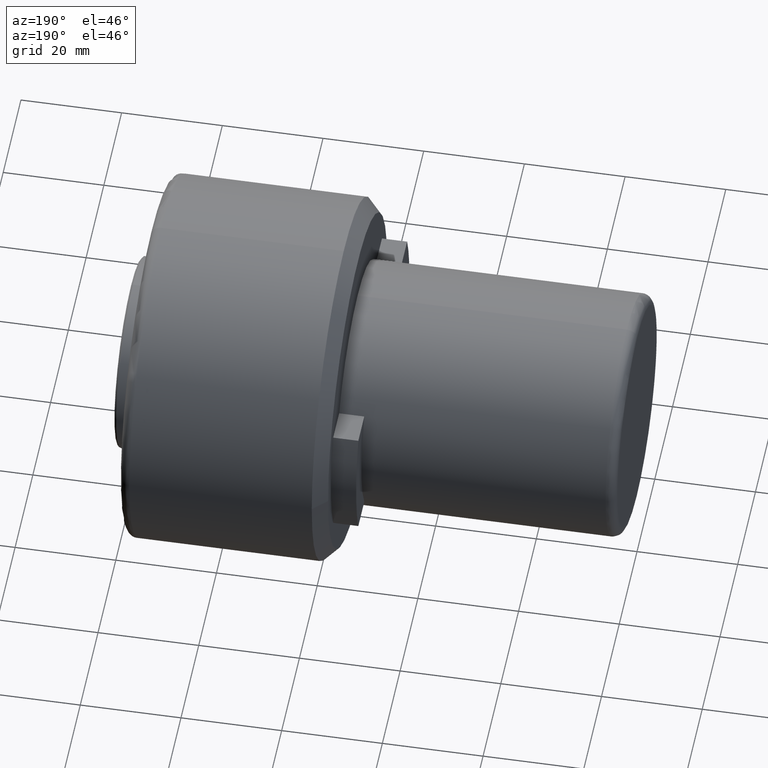
[diagram: clean part render]
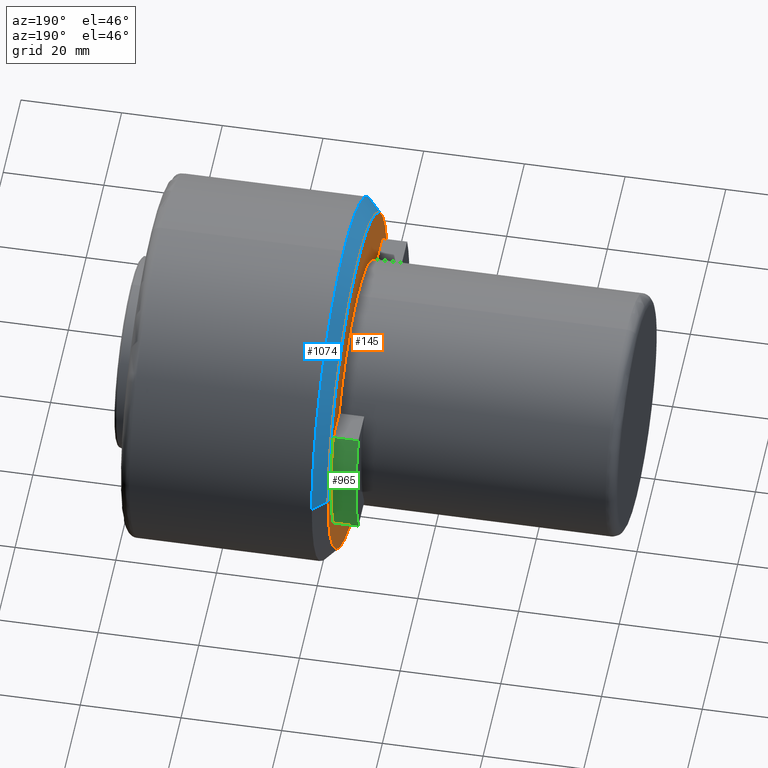
[diagram: same view with three faces highlighted in distinct colors, each labeled with its STEP entity id]
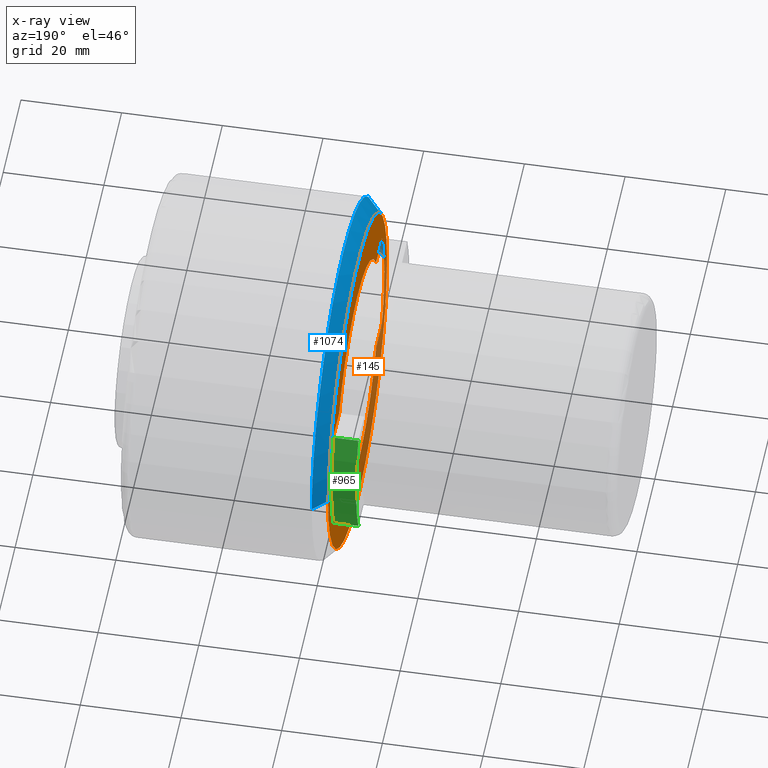
[diagram: x-ray of the same camera — body ghosted, the three highlighted faces saturated]
A machine part, auxiliary view with three faces highlighted in distinct colors.
The next image is the same camera in x-ray (body ghosted, the three faces saturated) — at least one of them is partly hidden behind the body in this view.
Their STEP definitions:

[orange] entity #145 — the highlighted planar face has unit normal (1, 0, 0).
#3 = CARTESIAN_POINT ( 'NONE',  ( 55.50000000000000000, -33.64900000000000100, -11.99999999140761600 ) ) ;
#6 = ORIENTED_EDGE ( 'NONE', *, *, #966, .F. ) ;
#12 = AXIS2_PLACEMENT_3D ( 'NONE', #931, #1026, #706 ) ;
#43 = CARTESIAN_POINT ( 'NONE',  ( 55.49999999999999300, 27.49545417165220900, -11.99999999787949900 ) ) ;
#63 = EDGE_CURVE ( 'NONE', #368, #646, #776, .T. ) ;
#77 = CARTESIAN_POINT ( 'NONE',  ( 55.50000000000000000, 20.78460969240347500, -11.99999999726865100 ) ) ;
#90 = EDGE_CURVE ( 'NONE', #511, #403, #995, .T. ) ;
#99 = AXIS2_PLACEMENT_3D ( 'NONE', #639, #1366, #400 ) ;
#131 = CARTESIAN_POINT ( 'NONE',  ( 55.50000000000000700, -20.78460969578734200, -11.99999999140761600 ) ) ;
#134 = CARTESIAN_POINT ( 'NONE',  ( 55.49999999999999300, -2.650271977186816100E-016, 0.0000000000000000000 ) ) ;
#141 = CARTESIAN_POINT ( 'NONE',  ( 55.50000000000000700, 0.0000000000000000000, 5.015442563508426400E-031 ) ) ;
#145 = ADVANCED_FACE ( 'NONE', ( #943, #391 ), #905, .F. ) ;
#146 = DIRECTION ( 'NONE',  ( 0.0000000000000000000, 0.0000000000000000000, 1.000000000000000000 ) ) ;
#149 = CARTESIAN_POINT ( 'NONE',  ( 55.49999999999999300, -33.24999999999999300, 4.240339542047711600E-015 ) ) ;
#160 = VECTOR ( 'NONE', #1171, 1000.000000000000000 ) ;
#168 = LINE ( 'NONE', #1274, #382 ) ;
#187 = ORIENTED_EDGE ( 'NONE', *, *, #929, .F. ) ;
#195 = EDGE_CURVE ( 'NONE', #1389, #663, #1014, .T. ) ;
#203 = CARTESIAN_POINT ( 'NONE',  ( 55.49999999999999300, 33.24999999999999300, 0.0000000000000000000 ) ) ;
#209 = CARTESIAN_POINT ( 'NONE',  ( 55.50000000000000700, 2.939152317953647900E-015, -24.00000000000000000 ) ) ;
#216 = DIRECTION ( 'NONE',  ( 0.0000000000000000000, 1.000000000000000000, 0.0000000000000000000 ) ) ;
#224 = CARTESIAN_POINT ( 'NONE',  ( 55.50000000000000000, -33.64900000000000100, 11.99999999999999600 ) ) ;
#233 = CARTESIAN_POINT ( 'NONE',  ( 55.50000000000000000, 3.677383230559753400E-031, 0.0000000000000000000 ) ) ;
#239 = DIRECTION ( 'NONE',  ( 0.0000000000000000000, 1.000000000000000000, 0.0000000000000000000 ) ) ;
#252 = VERTEX_POINT ( 'NONE', #209 ) ;
#283 = AXIS2_PLACEMENT_3D ( 'NONE', #134, #894, #239 ) ;
#347 = DIRECTION ( 'NONE',  ( 2.312964634635743000E-016, -1.000000000000000000, 0.0000000000000000000 ) ) ;
#368 = VERTEX_POINT ( 'NONE', #131 ) ;
#382 = VECTOR ( 'NONE', #864, 1000.000000000000000 ) ;
#391 = FACE_BOUND ( 'NONE', #759, .T. ) ;
#399 = EDGE_CURVE ( 'NONE', #519, #252, #666, .T. ) ;
#400 = DIRECTION ( 'NONE',  ( 0.0000000000000000000, 0.0000000000000000000, 1.000000000000000000 ) ) ;
#403 = VERTEX_POINT ( 'NONE', #149 ) ;
#412 = DIRECTION ( 'NONE',  ( -1.000000000000000000, -1.156482317317871700E-016, -0.0000000000000000000 ) ) ;
#442 = CARTESIAN_POINT ( 'NONE',  ( 55.50000000000000700, -30.00000000000000000, 0.0000000000000000000 ) ) ;
#444 = DIRECTION ( 'NONE',  ( 0.0000000000000000000, 0.0000000000000000000, -1.000000000000000000 ) ) ;
#447 = CARTESIAN_POINT ( 'NONE',  ( 55.50000000000000000, -3.677383230559753800E-031, 0.0000000000000000000 ) ) ;
#453 = VECTOR ( 'NONE', #702, 1000.000000000000000 ) ;
#455 = CARTESIAN_POINT ( 'NONE',  ( 55.49999999999999300, 0.0000000000000000000, 24.00000000000000400 ) ) ;
#471 = CARTESIAN_POINT ( 'NONE',  ( 55.50000000000000700, -27.49545416980128100, 11.99999999999999800 ) ) ;
#511 = VERTEX_POINT ( 'NONE', #203 ) ;
#519 = VERTEX_POINT ( 'NONE', #77 ) ;
#526 = VERTEX_POINT ( 'NONE', #43 ) ;
#534 = DIRECTION ( 'NONE',  ( -1.000000000000000000, 0.0000000000000000000, -1.445602896647339200E-016 ) ) ;
#542 = ORIENTED_EDGE ( 'NONE', *, *, #63, .F. ) ;
#556 = VERTEX_POINT ( 'NONE', #455 ) ;
#570 = DIRECTION ( 'NONE',  ( 0.0000000000000000000, 0.0000000000000000000, 1.000000000000000000 ) ) ;
#620 = EDGE_CURVE ( 'NONE', #252, #368, #667, .T. ) ;
#639 = CARTESIAN_POINT ( 'NONE',  ( 55.50000000000000700, 0.0000000000000000000, 5.015442563508426400E-031 ) ) ;
#643 = DIRECTION ( 'NONE',  ( 2.312964634635743000E-016, -1.000000000000000000, 0.0000000000000000000 ) ) ;
#644 = DIRECTION ( 'NONE',  ( 0.0000000000000000000, 0.0000000000000000000, 1.000000000000000000 ) ) ;
#646 = VERTEX_POINT ( 'NONE', #1114 ) ;
#653 = EDGE_CURVE ( 'NONE', #1161, #1389, #926, .T. ) ;
#663 = VERTEX_POINT ( 'NONE', #949 ) ;
#666 = CIRCLE ( 'NONE', #1015, 24.00000000000000000 ) ;
#667 = CIRCLE ( 'NONE', #99, 24.00000000000000000 ) ;
#702 = DIRECTION ( 'NONE',  ( 0.0000000000000000000, -1.000000000000000000, -0.0000000000000000000 ) ) ;
#706 = DIRECTION ( 'NONE',  ( 2.312964634635743000E-016, -1.000000000000000000, 0.0000000000000000000 ) ) ;
#715 = ORIENTED_EDGE ( 'NONE', *, *, #727, .F. ) ;
#727 = EDGE_CURVE ( 'NONE', #556, #1091, #1241, .T. ) ;
#736 = CIRCLE ( 'NONE', #12, 30.00000000000000000 ) ;
#759 = EDGE_LOOP ( 'NONE', ( #542, #1007, #791, #979, #984, #6, #715, #1365, #809, #1178, #187 ) ) ;
#771 = EDGE_CURVE ( 'NONE', #526, #519, #912, .T. ) ;
#776 = LINE ( 'NONE', #3, #453 ) ;
#791 = ORIENTED_EDGE ( 'NONE', *, *, #399, .F. ) ;
#809 = ORIENTED_EDGE ( 'NONE', *, *, #195, .F. ) ;
#817 = CARTESIAN_POINT ( 'NONE',  ( 55.49999999999999300, -2.650271977186816100E-016, 0.0000000000000000000 ) ) ;
#824 = CARTESIAN_POINT ( 'NONE',  ( 55.49999999999999300, 0.0000000000000000000, -7.523163844717393100E-031 ) ) ;
#828 = AXIS2_PLACEMENT_3D ( 'NONE', #824, #1163, #146 ) ;
#838 = CIRCLE ( 'NONE', #283, 33.24999999999999300 ) ;
#857 = CARTESIAN_POINT ( 'NONE',  ( 55.49999999999999300, 0.0000000000000000000, -7.523163844717393100E-031 ) ) ;
#864 = DIRECTION ( 'NONE',  ( -0.0000000000000000000, 1.000000000000000000, 0.0000000000000000000 ) ) ;
#865 = DIRECTION ( 'NONE',  ( 1.000000000000000000, 0.0000000000000000000, 0.0000000000000000000 ) ) ;
#878 = AXIS2_PLACEMENT_3D ( 'NONE', #447, #412, #643 ) ;
#882 = VECTOR ( 'NONE', #1268, 1000.000000000000000 ) ;
#894 = DIRECTION ( 'NONE',  ( 1.000000000000000000, 9.637352644315590300E-017, -0.0000000000000000000 ) ) ;
#905 = PLANE ( 'NONE',  #1394 ) ;
#912 = LINE ( 'NONE', #1156, #882 ) ;
#926 = CIRCLE ( 'NONE', #878, 30.00000000000000000 ) ;
#929 = EDGE_CURVE ( 'NONE', #646, #1161, #736, .T. ) ;
#931 = CARTESIAN_POINT ( 'NONE',  ( 55.50000000000000000, -3.677383230559753800E-031, 0.0000000000000000000 ) ) ;
#943 = FACE_OUTER_BOUND ( 'NONE', #1088, .T. ) ;
#949 = CARTESIAN_POINT ( 'NONE',  ( 55.49999999999999300, -20.78460969007334200, 12.00000000130456000 ) ) ;
#966 = EDGE_CURVE ( 'NONE', #1091, #1143, #168, .T. ) ;
#972 = EDGE_CURVE ( 'NONE', #663, #556, #1236, .T. ) ;
#979 = ORIENTED_EDGE ( 'NONE', *, *, #771, .F. ) ;
#984 = ORIENTED_EDGE ( 'NONE', *, *, #1209, .F. ) ;
#991 = DIRECTION ( 'NONE',  ( -1.000000000000000000, -1.156482317317871700E-016, -0.0000000000000000000 ) ) ;
#995 = CIRCLE ( 'NONE', #1295, 33.24999999999999300 ) ;
#1007 = ORIENTED_EDGE ( 'NONE', *, *, #620, .F. ) ;
#1014 = LINE ( 'NONE', #224, #160 ) ;
#1015 = AXIS2_PLACEMENT_3D ( 'NONE', #141, #1211, #570 ) ;
#1026 = DIRECTION ( 'NONE',  ( -1.000000000000000000, -1.156482317317871700E-016, -0.0000000000000000000 ) ) ;
#1088 = EDGE_LOOP ( 'NONE', ( #1198, #1342 ) ) ;
#1091 = VERTEX_POINT ( 'NONE', #1221 ) ;
#1114 = CARTESIAN_POINT ( 'NONE',  ( 55.50000000000000700, -27.49545417167629000, -11.99999999570380800 ) ) ;
#1117 = CIRCLE ( 'NONE', #1144, 30.00000000000000000 ) ;
#1143 = VERTEX_POINT ( 'NONE', #1189 ) ;
#1144 = AXIS2_PLACEMENT_3D ( 'NONE', #233, #991, #347 ) ;
#1156 = CARTESIAN_POINT ( 'NONE',  ( 55.50000000000000000, -33.64900000000000100, -11.99999999575899600 ) ) ;
#1161 = VERTEX_POINT ( 'NONE', #442 ) ;
#1163 = DIRECTION ( 'NONE',  ( -1.000000000000000000, 0.0000000000000000000, -1.445602896647339200E-016 ) ) ;
#1171 = DIRECTION ( 'NONE',  ( -0.0000000000000000000, 1.000000000000000000, 0.0000000000000000000 ) ) ;
#1178 = ORIENTED_EDGE ( 'NONE', *, *, #653, .F. ) ;
#1189 = CARTESIAN_POINT ( 'NONE',  ( 55.49999999999999300, 27.49545417074602900, 11.99999999783530000 ) ) ;
#1198 = ORIENTED_EDGE ( 'NONE', *, *, #90, .F. ) ;
#1209 = EDGE_CURVE ( 'NONE', #1143, #526, #1117, .T. ) ;
#1211 = DIRECTION ( 'NONE',  ( -1.000000000000000000, 0.0000000000000000000, -1.445602896647339200E-016 ) ) ;
#1221 = CARTESIAN_POINT ( 'NONE',  ( 55.50000000000000700, 20.78460969332610700, 11.99999999567060100 ) ) ;
#1222 = CARTESIAN_POINT ( 'NONE',  ( 55.50000000000000000, -33.64900000000000100, -33.64900000000000100 ) ) ;
#1236 = CIRCLE ( 'NONE', #1308, 24.00000000000000000 ) ;
#1241 = CIRCLE ( 'NONE', #828, 24.00000000000000000 ) ;
#1251 = EDGE_CURVE ( 'NONE', #403, #511, #838, .T. ) ;
#1268 = DIRECTION ( 'NONE',  ( 0.0000000000000000000, -1.000000000000000000, -0.0000000000000000000 ) ) ;
#1274 = CARTESIAN_POINT ( 'NONE',  ( 55.50000000000000000, -33.64900000000000100, 11.99999999567059900 ) ) ;
#1295 = AXIS2_PLACEMENT_3D ( 'NONE', #817, #1360, #216 ) ;
#1308 = AXIS2_PLACEMENT_3D ( 'NONE', #857, #534, #644 ) ;
#1342 = ORIENTED_EDGE ( 'NONE', *, *, #1251, .F. ) ;
#1360 = DIRECTION ( 'NONE',  ( 1.000000000000000000, 9.637352644315590300E-017, -0.0000000000000000000 ) ) ;
#1365 = ORIENTED_EDGE ( 'NONE', *, *, #972, .F. ) ;
#1366 = DIRECTION ( 'NONE',  ( -1.000000000000000000, 0.0000000000000000000, -1.445602896647339200E-016 ) ) ;
#1389 = VERTEX_POINT ( 'NONE', #471 ) ;
#1394 = AXIS2_PLACEMENT_3D ( 'NONE', #1222, #865, #444 ) ;

[blue] entity #1074 — the highlighted conical surface has half-angle 45 deg.
#44 = CARTESIAN_POINT ( 'NONE',  ( 58.25000000000001400, 0.0000000000000000000, 2.869467403871423700E-016 ) ) ;
#49 = DIRECTION ( 'NONE',  ( 1.000000000000000000, 9.637352644315590300E-017, -0.0000000000000000000 ) ) ;
#69 = FACE_OUTER_BOUND ( 'NONE', #247, .T. ) ;
#76 = EDGE_CURVE ( 'NONE', #403, #336, #1307, .T. ) ;
#90 = EDGE_CURVE ( 'NONE', #511, #403, #995, .T. ) ;
#149 = CARTESIAN_POINT ( 'NONE',  ( 55.49999999999999300, -33.24999999999999300, 4.240339542047711600E-015 ) ) ;
#153 = DIRECTION ( 'NONE',  ( 1.927470528863117600E-016, 0.0000000000000000000, -1.000000000000000000 ) ) ;
#203 = CARTESIAN_POINT ( 'NONE',  ( 55.49999999999999300, 33.24999999999999300, 0.0000000000000000000 ) ) ;
#216 = DIRECTION ( 'NONE',  ( 0.0000000000000000000, 1.000000000000000000, 0.0000000000000000000 ) ) ;
#247 = EDGE_LOOP ( 'NONE', ( #485, #725, #1390, #1009, #289 ) ) ;
#279 = CARTESIAN_POINT ( 'NONE',  ( 58.25000000000002100, 36.00000000000002100, 0.0000000000000000000 ) ) ;
#289 = ORIENTED_EDGE ( 'NONE', *, *, #927, .F. ) ;
#318 = CARTESIAN_POINT ( 'NONE',  ( 58.25000000000001400, -36.00000000000001400, 4.408728476930473200E-015 ) ) ;
#336 = VERTEX_POINT ( 'NONE', #318 ) ;
#403 = VERTEX_POINT ( 'NONE', #149 ) ;
#416 = VECTOR ( 'NONE', #604, 1000.000000000000000 ) ;
#485 = ORIENTED_EDGE ( 'NONE', *, *, #90, .T. ) ;
#511 = VERTEX_POINT ( 'NONE', #203 ) ;
#564 = CARTESIAN_POINT ( 'NONE',  ( 58.25000000000001400, 0.0000000000000000000, 2.869467403871423700E-016 ) ) ;
#586 = CIRCLE ( 'NONE', #993, 36.00000000000002800 ) ;
#590 = DIRECTION ( 'NONE',  ( 0.0000000000000000000, 1.000000000000000000, 0.0000000000000000000 ) ) ;
#604 = DIRECTION ( 'NONE',  ( 0.7071067811865483500, 0.7071067811865468000, 0.0000000000000000000 ) ) ;
#637 = AXIS2_PLACEMENT_3D ( 'NONE', #44, #792, #153 ) ;
#671 = DIRECTION ( 'NONE',  ( 1.927470528863117600E-016, 0.0000000000000000000, -1.000000000000000000 ) ) ;
#692 = VERTEX_POINT ( 'NONE', #942 ) ;
#707 = LINE ( 'NONE', #279, #416 ) ;
#725 = ORIENTED_EDGE ( 'NONE', *, *, #76, .T. ) ;
#750 = CARTESIAN_POINT ( 'NONE',  ( 58.25000000000000700, 0.0000000000000000000, 36.00000000000002800 ) ) ;
#792 = DIRECTION ( 'NONE',  ( -1.000000000000000000, -0.0000000000000000000, -1.043442692316876300E-016 ) ) ;
#800 = CARTESIAN_POINT ( 'NONE',  ( 58.25000000000002100, 0.0000000000000000000, 0.0000000000000000000 ) ) ;
#817 = CARTESIAN_POINT ( 'NONE',  ( 55.49999999999999300, -2.650271977186816100E-016, 0.0000000000000000000 ) ) ;
#843 = DIRECTION ( 'NONE',  ( 0.7071067811865485700, -0.7071067811865465700, 8.659560562354924200E-017 ) ) ;
#927 = EDGE_CURVE ( 'NONE', #511, #692, #707, .T. ) ;
#942 = CARTESIAN_POINT ( 'NONE',  ( 58.25000000000001400, 36.00000000000001400, 0.0000000000000000000 ) ) ;
#993 = AXIS2_PLACEMENT_3D ( 'NONE', #564, #1305, #671 ) ;
#995 = CIRCLE ( 'NONE', #1295, 33.24999999999999300 ) ;
#1000 = VERTEX_POINT ( 'NONE', #750 ) ;
#1009 = ORIENTED_EDGE ( 'NONE', *, *, #1362, .T. ) ;
#1042 = CONICAL_SURFACE ( 'NONE', #1300, 36.00000000000002100, 0.7853981633974470600 ) ;
#1054 = CIRCLE ( 'NONE', #637, 36.00000000000002800 ) ;
#1074 = ADVANCED_FACE ( 'NONE', ( #69 ), #1042, .T. ) ;
#1179 = CARTESIAN_POINT ( 'NONE',  ( 58.25000000000002100, -36.00000000000002100, 4.408728476930474000E-015 ) ) ;
#1224 = EDGE_CURVE ( 'NONE', #336, #1000, #586, .T. ) ;
#1271 = VECTOR ( 'NONE', #843, 1000.000000000000000 ) ;
#1295 = AXIS2_PLACEMENT_3D ( 'NONE', #817, #1360, #216 ) ;
#1300 = AXIS2_PLACEMENT_3D ( 'NONE', #800, #49, #590 ) ;
#1305 = DIRECTION ( 'NONE',  ( -1.000000000000000000, -0.0000000000000000000, -1.043442692316876300E-016 ) ) ;
#1307 = LINE ( 'NONE', #1179, #1271 ) ;
#1360 = DIRECTION ( 'NONE',  ( 1.000000000000000000, 9.637352644315590300E-017, -0.0000000000000000000 ) ) ;
#1362 = EDGE_CURVE ( 'NONE', #1000, #692, #1054, .T. ) ;
#1390 = ORIENTED_EDGE ( 'NONE', *, *, #1224, .T. ) ;

[green] entity #965 — the highlighted cylindrical surface (partial cylindrical patch) has radius 30 mm, axis along (-1, -0, -0).
#43 = CARTESIAN_POINT ( 'NONE',  ( 55.49999999999999300, 27.49545417165220900, -11.99999999787949900 ) ) ;
#83 = LINE ( 'NONE', #1260, #1188 ) ;
#233 = CARTESIAN_POINT ( 'NONE',  ( 55.50000000000000000, 3.677383230559753400E-031, 0.0000000000000000000 ) ) ;
#275 = DIRECTION ( 'NONE',  ( -1.000000000000000000, -1.156482317317871700E-016, -0.0000000000000000000 ) ) ;
#280 = CARTESIAN_POINT ( 'NONE',  ( 50.50000000000000000, 27.49545416980128100, 12.00000000000000000 ) ) ;
#297 = DIRECTION ( 'NONE',  ( 2.312964634635743000E-016, -1.000000000000000000, 1.776356839400250500E-015 ) ) ;
#324 = EDGE_CURVE ( 'NONE', #526, #924, #957, .T. ) ;
#347 = DIRECTION ( 'NONE',  ( 2.312964634635743000E-016, -1.000000000000000000, 0.0000000000000000000 ) ) ;
#407 = VECTOR ( 'NONE', #622, 1000.000000000000000 ) ;
#491 = CARTESIAN_POINT ( 'NONE',  ( 55.50000000000000000, 0.0000000000000000000, 0.0000000000000000000 ) ) ;
#526 = VERTEX_POINT ( 'NONE', #43 ) ;
#602 = DIRECTION ( 'NONE',  ( 1.000000000000000000, -0.0000000000000000000, 0.0000000000000000000 ) ) ;
#622 = DIRECTION ( 'NONE',  ( -1.000000000000000000, -0.0000000000000000000, -0.0000000000000000000 ) ) ;
#629 = DIRECTION ( 'NONE',  ( 1.000000000000000000, 1.156482317317871700E-016, 0.0000000000000000000 ) ) ;
#640 = CIRCLE ( 'NONE', #1229, 30.00000000000000000 ) ;
#670 = FACE_OUTER_BOUND ( 'NONE', #1013, .T. ) ;
#726 = VERTEX_POINT ( 'NONE', #280 ) ;
#735 = EDGE_CURVE ( 'NONE', #726, #1143, #83, .T. ) ;
#753 = CARTESIAN_POINT ( 'NONE',  ( 50.50000000000000000, 27.49545417171844600, -12.00000000000000000 ) ) ;
#816 = CARTESIAN_POINT ( 'NONE',  ( 50.50000000000000000, 27.49545417072674200, -12.00000000000000000 ) ) ;
#885 = ORIENTED_EDGE ( 'NONE', *, *, #982, .T. ) ;
#924 = VERTEX_POINT ( 'NONE', #816 ) ;
#957 = LINE ( 'NONE', #753, #407 ) ;
#965 = ADVANCED_FACE ( 'NONE', ( #670 ), #1204, .T. ) ;
#977 = ORIENTED_EDGE ( 'NONE', *, *, #735, .T. ) ;
#982 = EDGE_CURVE ( 'NONE', #924, #726, #640, .T. ) ;
#991 = DIRECTION ( 'NONE',  ( -1.000000000000000000, -1.156482317317871700E-016, -0.0000000000000000000 ) ) ;
#1013 = EDGE_LOOP ( 'NONE', ( #1110, #885, #977, #1219 ) ) ;
#1110 = ORIENTED_EDGE ( 'NONE', *, *, #324, .T. ) ;
#1117 = CIRCLE ( 'NONE', #1144, 30.00000000000000000 ) ;
#1143 = VERTEX_POINT ( 'NONE', #1189 ) ;
#1144 = AXIS2_PLACEMENT_3D ( 'NONE', #233, #991, #347 ) ;
#1188 = VECTOR ( 'NONE', #602, 1000.000000000000000 ) ;
#1189 = CARTESIAN_POINT ( 'NONE',  ( 55.49999999999999300, 27.49545417074602900, 11.99999999783530000 ) ) ;
#1204 = CYLINDRICAL_SURFACE ( 'NONE', #1290, 30.00000000000000000 ) ;
#1209 = EDGE_CURVE ( 'NONE', #1143, #526, #1117, .T. ) ;
#1219 = ORIENTED_EDGE ( 'NONE', *, *, #1209, .T. ) ;
#1229 = AXIS2_PLACEMENT_3D ( 'NONE', #1387, #629, #297 ) ;
#1237 = DIRECTION ( 'NONE',  ( 2.312964634635743000E-016, -1.000000000000000000, 0.0000000000000000000 ) ) ;
#1260 = CARTESIAN_POINT ( 'NONE',  ( 50.50000000000000000, 27.49545416986751800, 12.00000000000000000 ) ) ;
#1290 = AXIS2_PLACEMENT_3D ( 'NONE', #491, #275, #1237 ) ;
#1387 = CARTESIAN_POINT ( 'NONE',  ( 50.50000000000000000, -5.782411586589351700E-016, 0.0000000000000000000 ) ) ;